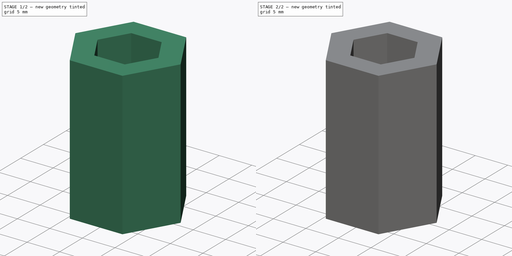
[diagram: build sequence overview — one tinted view per stage of 2, left to right]
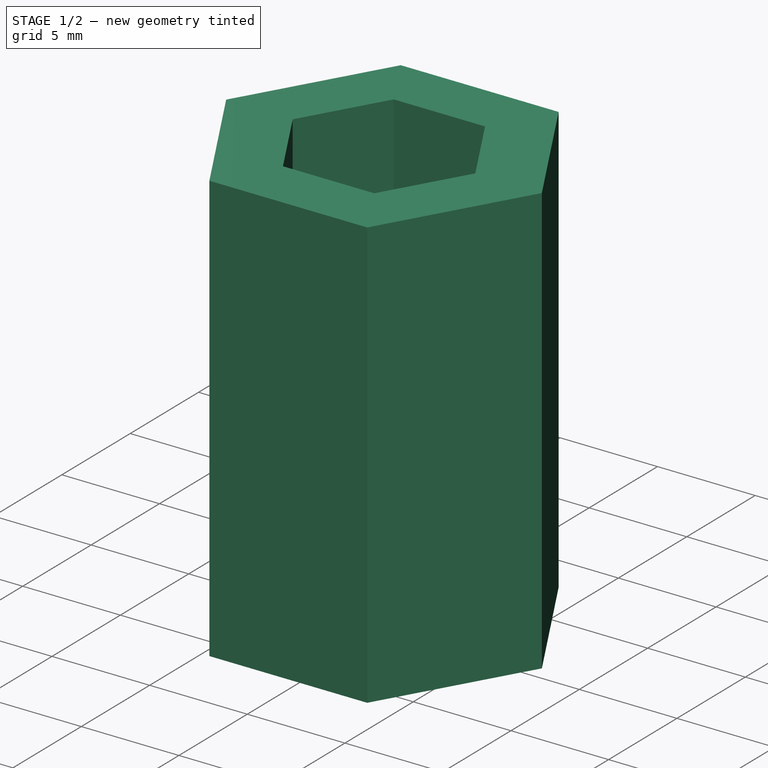
[diagram: stage 1 of 2 — iso view after this stage's code; geometry added in this stage tinted green]
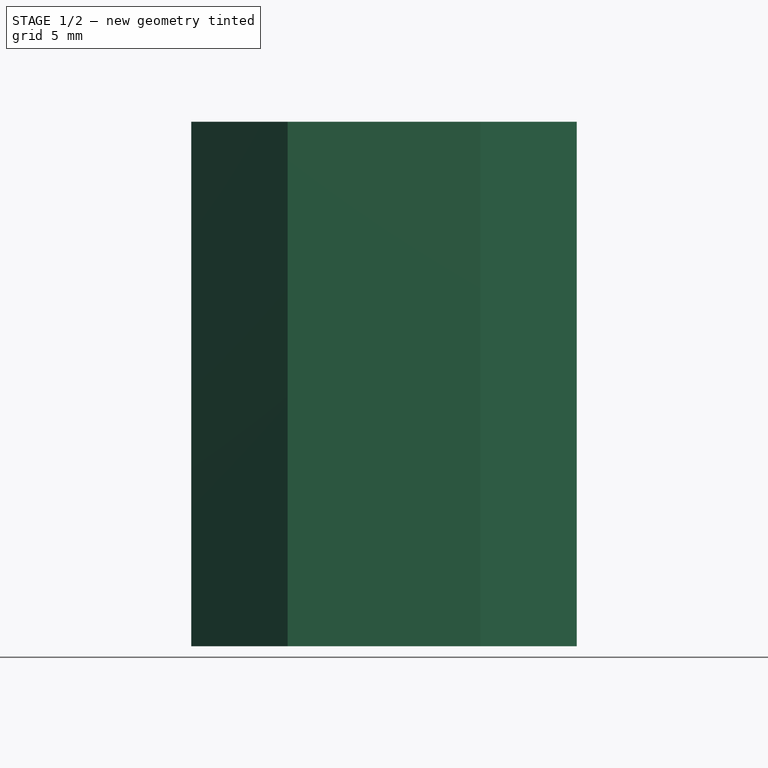
[diagram: stage 1 of 2 — front view after this stage's code; geometry added in this stage tinted green]
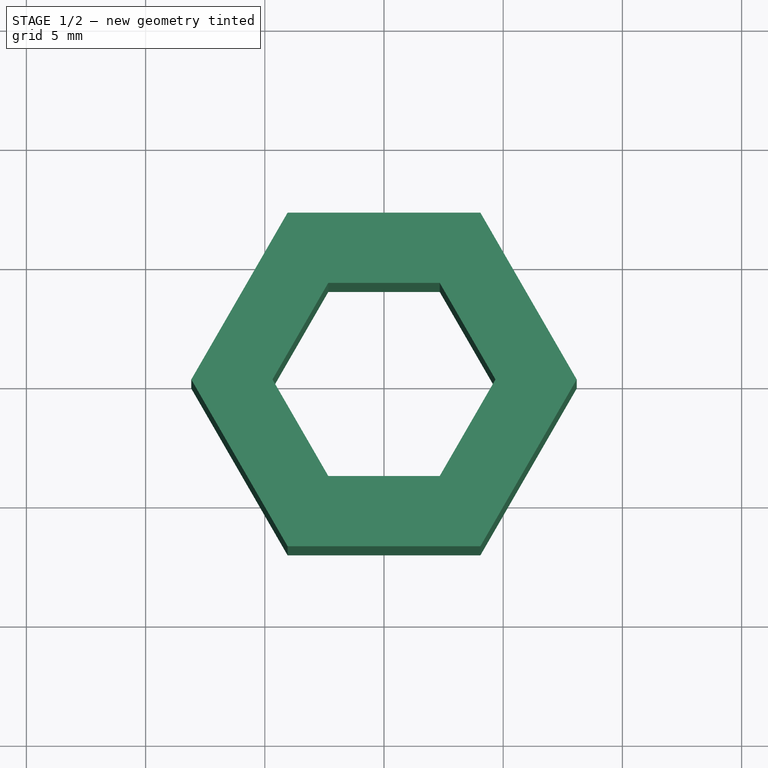
[diagram: stage 1 of 2 — top view after this stage's code; geometry added in this stage tinted green]
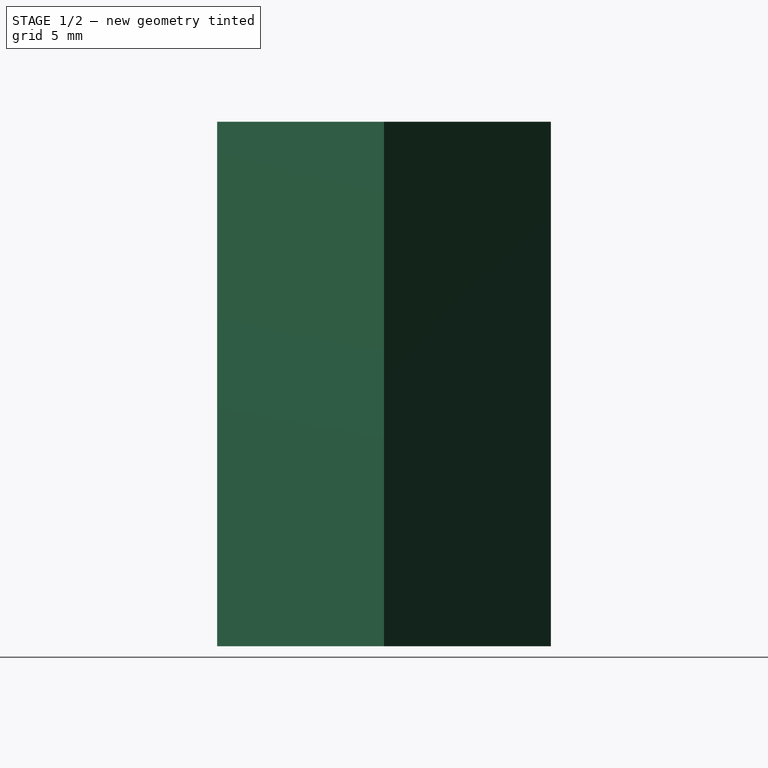
[diagram: stage 1 of 2 — right view after this stage's code; geometry added in this stage tinted green]
FCSTD DOCUMENT  (FreeCAD 0.19R23141 (Git))
Label: router_jig_insert
License: All rights reserved
LicenseURL: http://en.wikipedia.org/wiki/All_rights_reserved
objects: Sketcher::SketchObject×2, PartDesign::Pad×2, PartDesign::Body×1
note: 7 computed .brp shape members not serialized (recipe doc carries the construction recipe); baked Part::Feature solids carry a one-line shape summary decoded from their .brp

FEATURE [Sketcher::SketchObject] Sketch
  MapMode = 5
  Support = -> [XY_Plane]
  sketch-geometry (14):
    g0: LineSegment StartX=4.04145 StartY=-7 StartZ=0 EndX=8.0829 EndY=5.1816e-12 EndZ=0
    g1: LineSegment StartX=8.0829 StartY=5.1816e-12 StartZ=0 EndX=4.04145 EndY=7 EndZ=0
    g2: LineSegment StartX=4.04145 StartY=7 StartZ=0 EndX=-4.04145 EndY=7 EndZ=0
    g3: LineSegment StartX=-4.04145 StartY=7 StartZ=0 EndX=-8.0829 EndY=4.6496e-12 EndZ=0
    g4: LineSegment StartX=-8.0829 StartY=4.6496e-12 StartZ=0 EndX=-4.04145 EndY=-7 EndZ=0
    g5: LineSegment StartX=-4.04145 StartY=-7 StartZ=0 EndX=4.04145 EndY=-7 EndZ=0
    g6: Circle [constr] CenterX=0 CenterY=0 CenterZ=0 NormalX=0 NormalY=0 NormalZ=1 AngleXU=0 Radius=8.0829
    g7: LineSegment StartX=4.67654 StartY=-6e-16 StartZ=0 EndX=2.33827 EndY=4.05 EndZ=0
    g8: LineSegment StartX=2.33827 StartY=4.05 StartZ=0 EndX=-2.33827 EndY=4.05 EndZ=0
    g9: LineSegment StartX=-2.33827 StartY=4.05 StartZ=0 EndX=-4.67654 EndY=0 EndZ=0
    g10: LineSegment StartX=-4.67654 StartY=0 StartZ=0 EndX=-2.33827 EndY=-4.05 EndZ=0
    g11: LineSegment StartX=-2.33827 StartY=-4.05 StartZ=0 EndX=2.33827 EndY=-4.05 EndZ=0
    g12: LineSegment StartX=2.33827 StartY=-4.05 StartZ=0 EndX=4.67654 EndY=-9e-16 EndZ=0
    g13: Circle [constr] CenterX=0 CenterY=0 CenterZ=0 NormalX=0 NormalY=0 NormalZ=1 AngleXU=0 Radius=4.67654
  constraints (32):
    c: Coincident(g0,g1)
    c: Coincident(g1,g2)
    c: Coincident(g2,g3)
    c: Coincident(g3,g4)
    c: Coincident(g4,g5)
    c: Coincident(g5,g0)
    c: Equal(g0, g1-g5) x5
    c: PointOnObject(g0,g6)
    c: PointOnObject(g1,g6)
    c: PointOnObject(g2,g6)
    c: PointOnObject(g3,g6)
    c: PointOnObject(g4,g6)
    c: PointOnObject(g5,g6)
    c: Coincident(g6,g-1)
    c: Horizontal(g2)
    c: Coincident(g7,g8)
    c: Coincident(g8,g9)
    c: Coincident(g9,g10)
    c: Coincident(g10,g11)
    c: Coincident(g11,g12)
    c: Coincident(g12,g7)
    c: Equal(g7, g8-g12) x5
    c: PointOnObject(g7,g13)
    c: PointOnObject(g8,g13)
    c: PointOnObject(g9,g13)
    c: PointOnObject(g10,g13)
    c: PointOnObject(g11,g13)
    c: PointOnObject(g12,g13)
    c: Coincident(g13,g-1)
    c: Horizontal(g8)
    c: DistanceY(g0,g1) = 14
    c: DistanceY(g11,g7) = 8.1
FEATURE [PartDesign::Pad] Pad
  Direction = (1,1,1)
  Length = 22
  Length2 = 100
  Profile = -> Sketch
  Type = 0
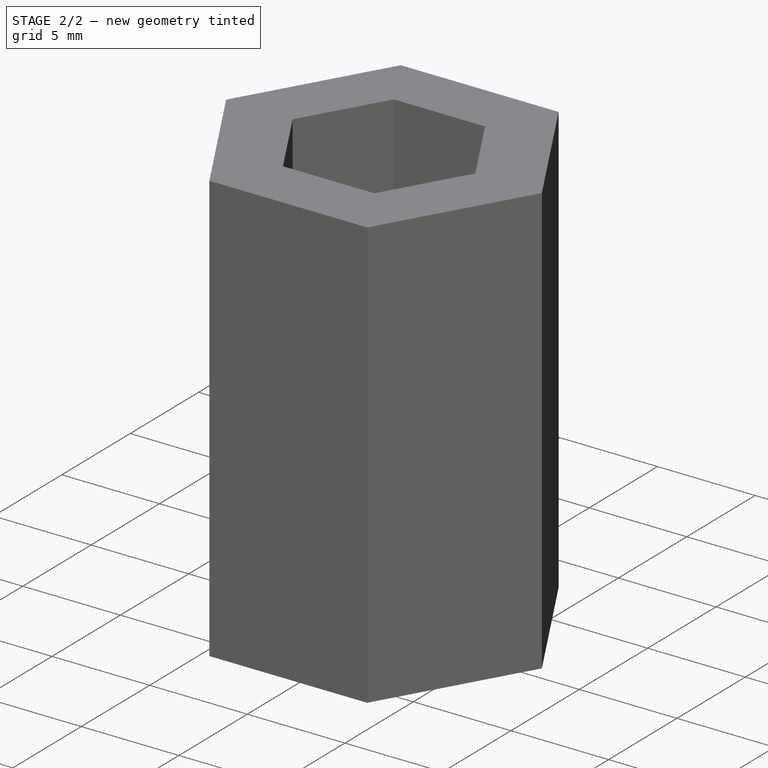
[diagram: stage 2 of 2 — iso view after this stage's code; geometry added in this stage tinted green]
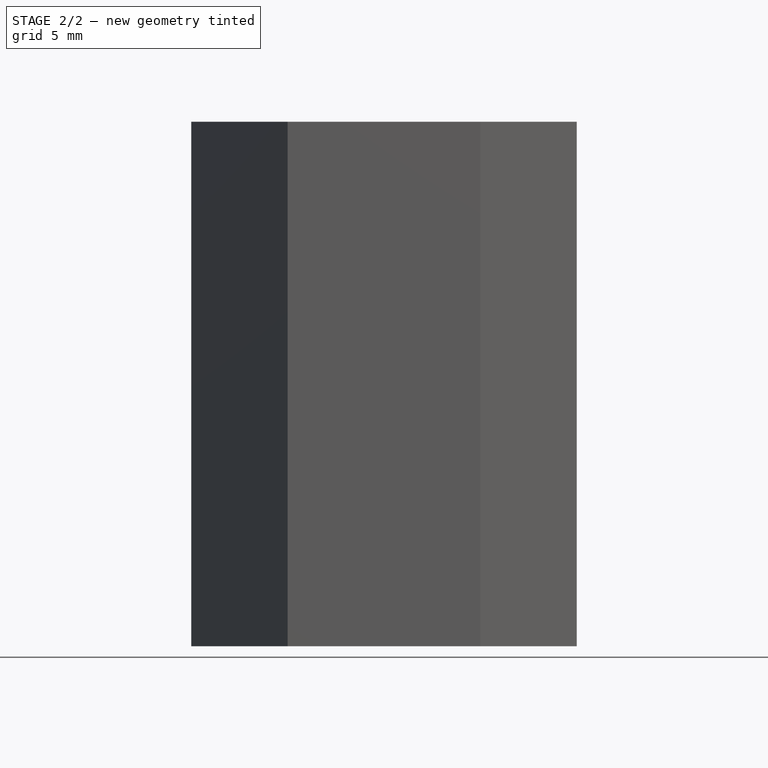
[diagram: stage 2 of 2 — front view after this stage's code; geometry added in this stage tinted green]
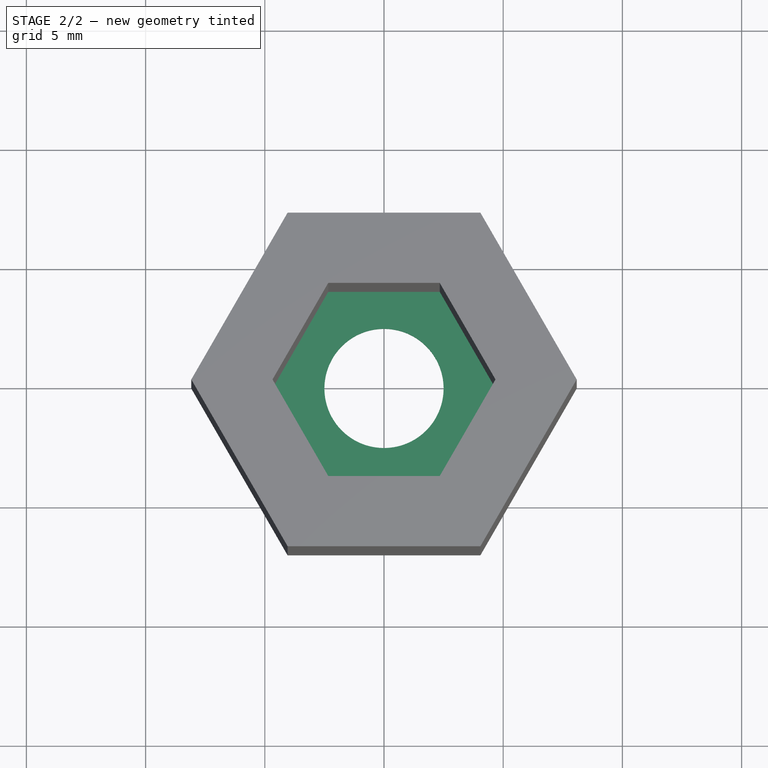
[diagram: stage 2 of 2 — top view after this stage's code; geometry added in this stage tinted green]
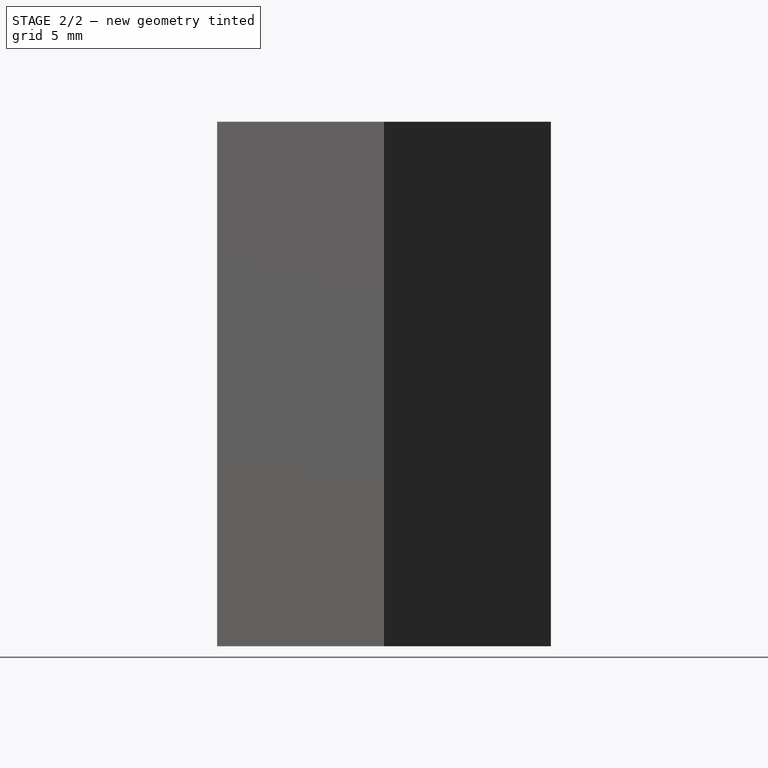
[diagram: stage 2 of 2 — right view after this stage's code; geometry added in this stage tinted green]
FEATURE [Sketcher::SketchObject] Sketch001
  MapMode = 5
  Support = -> [XY_Plane]
  sketch-geometry (2):
    g0: Circle CenterX=0 CenterY=0 CenterZ=0 NormalX=0 NormalY=0 NormalZ=1 AngleXU=0 Radius=2.5
    g1: Circle CenterX=0 CenterY=0 CenterZ=0 NormalX=0 NormalY=0 NormalZ=1 AngleXU=0 Radius=5
  constraints (4):
    c: Coincident(g0,g-1)
    c: Diameter(g0) = 5
    c: Coincident(g1,g0)
    c: Diameter(g1) = 10
FEATURE [PartDesign::Pad] Pad001
  BaseFeature = -> Pad
  Direction = (1,1,1)
  Length = 0.4
  Length2 = 100
  Profile = -> Sketch001
  Refine = true
  Type = 0
FEATURE [PartDesign::Body] Body
  Group = -> [Sketch,Pad,Sketch001,Pad001]
  Origin = -> Origin
  Tip = -> Pad001
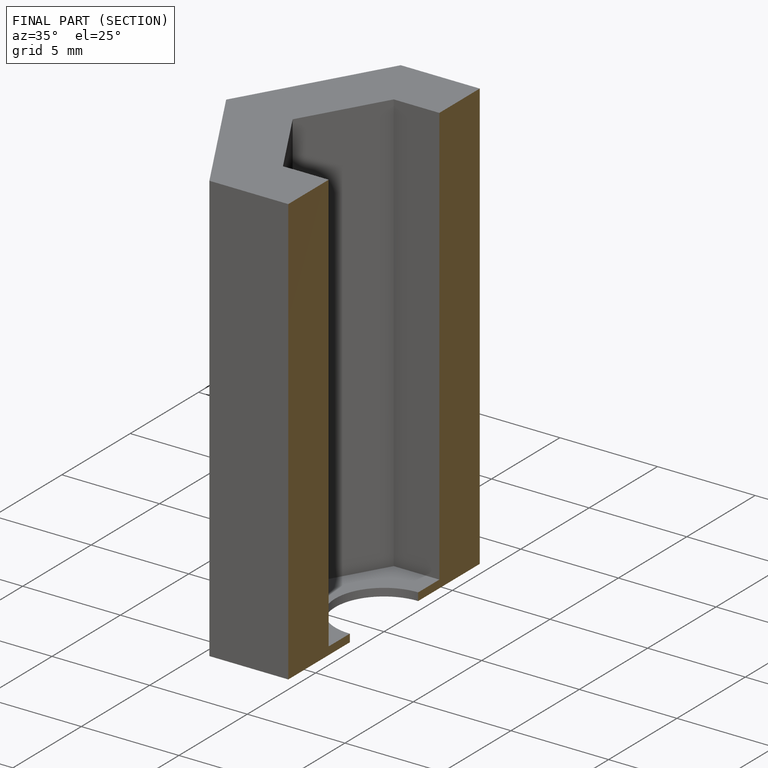
[diagram: finished part — half-section view (interior)]
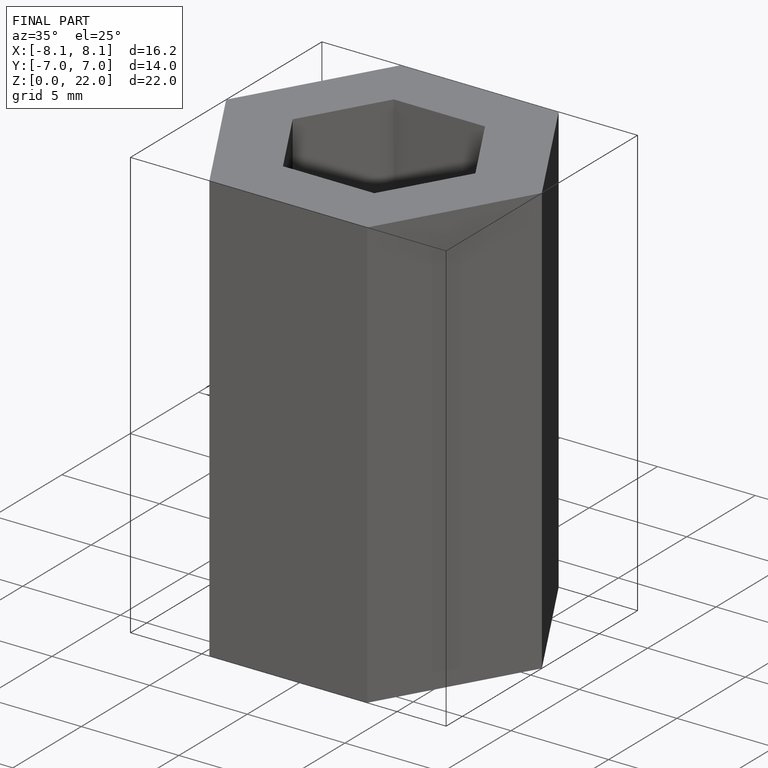
[diagram: finished part — iso view with bounding-box wireframe]
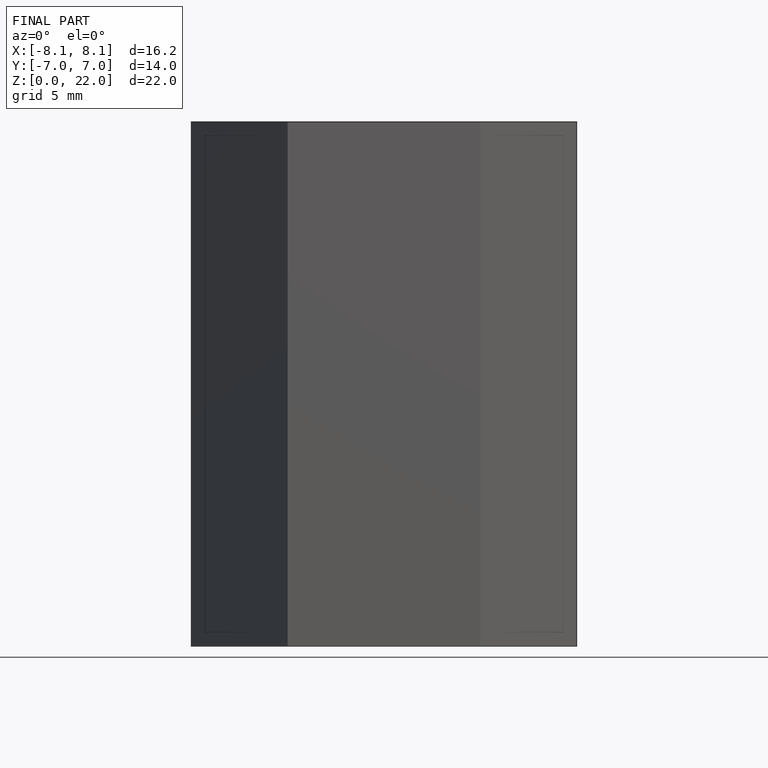
[diagram: finished part — front view with bounding-box wireframe]
